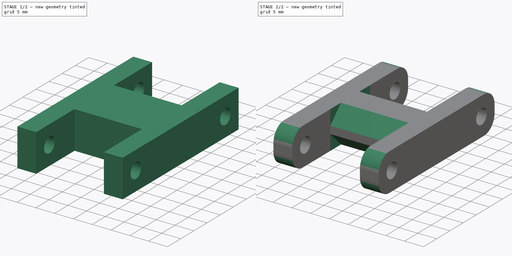
[diagram: build sequence overview — one tinted view per stage of 2, left to right]
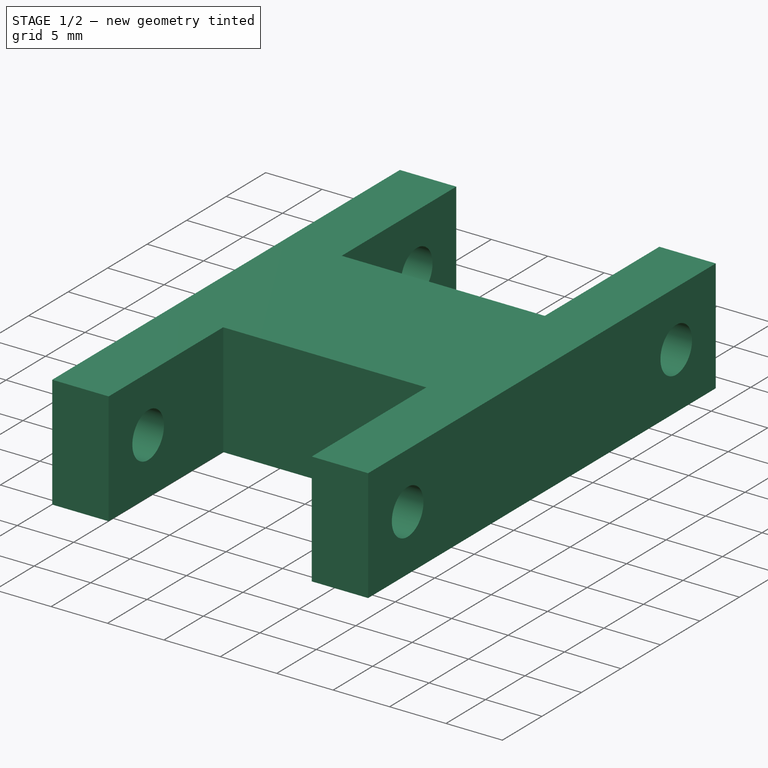
[diagram: stage 1 of 2 — iso view after this stage's code; geometry added in this stage tinted green]
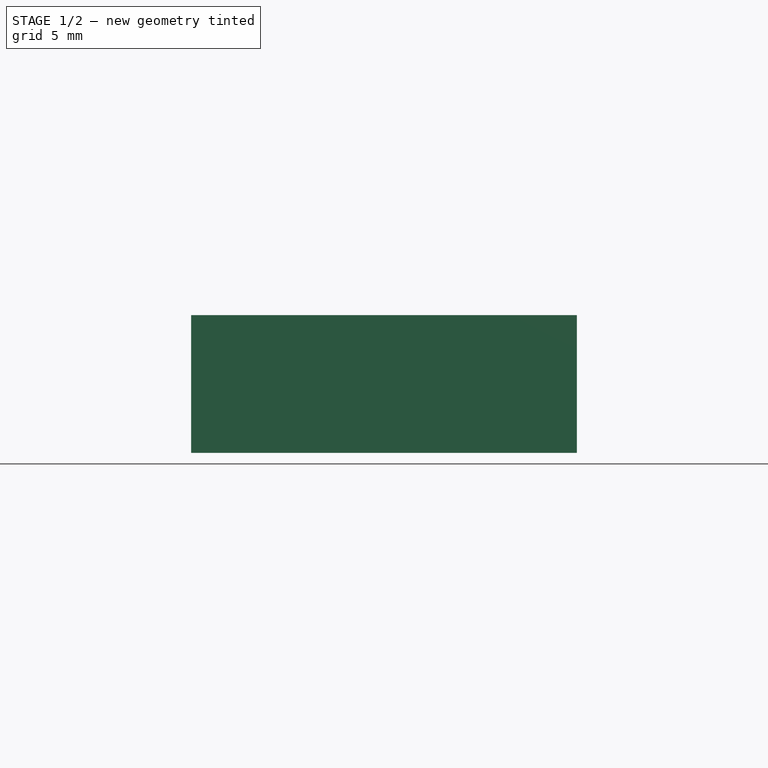
[diagram: stage 1 of 2 — front view after this stage's code; geometry added in this stage tinted green]
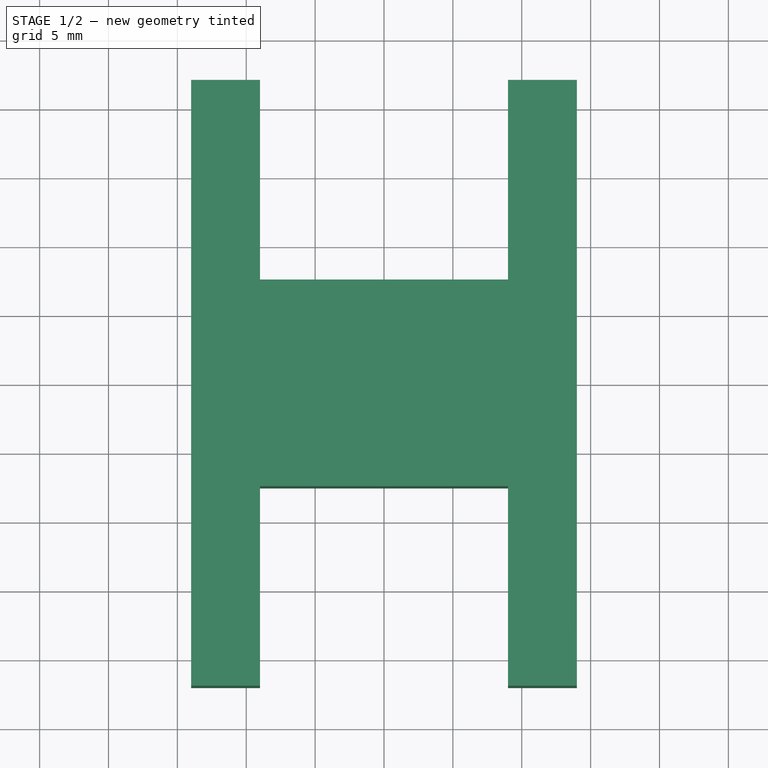
[diagram: stage 1 of 2 — top view after this stage's code; geometry added in this stage tinted green]
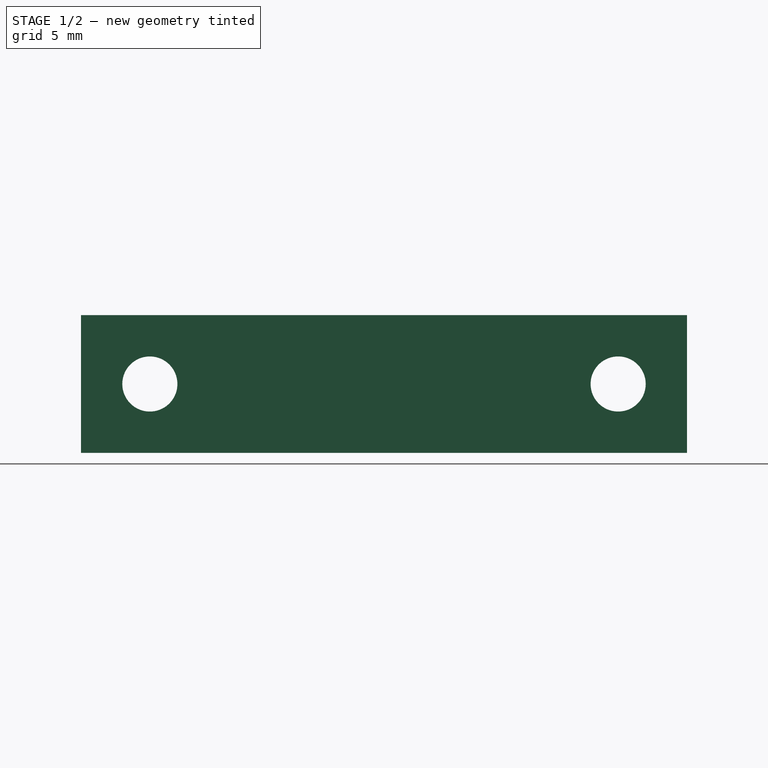
[diagram: stage 1 of 2 — right view after this stage's code; geometry added in this stage tinted green]
FCSTD DOCUMENT  (FreeCAD 0.18.3R)
Label: hinge
License: All rights reserved
LicenseURL: http://en.wikipedia.org/wiki/All_rights_reserved
objects: Sketcher::SketchObject×2, PartDesign::Pad×1, PartDesign::Pocket×1, PartDesign::Chamfer×1, PartDesign::Fillet×1, PartDesign::Body×1
note: 9 computed .brp shape members not serialized (recipe doc carries the construction recipe); baked Part::Feature solids carry a one-line shape summary decoded from their .brp

FEATURE [Sketcher::SketchObject] Sketch
  MapMode = 5
  Support = -> [XY_Plane]
  sketch-geometry (12):
    g0: LineSegment StartX=-9 StartY=7.5 StartZ=0 EndX=9 EndY=7.5 EndZ=0
    g1: LineSegment StartX=9 StartY=7.5 StartZ=0 EndX=9 EndY=22 EndZ=0
    g2: LineSegment StartX=9 StartY=22 StartZ=0 EndX=14 EndY=22 EndZ=0
    g3: LineSegment StartX=14 StartY=22 StartZ=0 EndX=14 EndY=-22 EndZ=0
    g4: LineSegment StartX=14 StartY=-22 StartZ=0 EndX=9 EndY=-22 EndZ=0
    g5: LineSegment StartX=9 StartY=-22 StartZ=0 EndX=9 EndY=-7.5 EndZ=0
    g6: LineSegment StartX=9 StartY=-7.5 StartZ=0 EndX=-9 EndY=-7.5 EndZ=0
    g7: LineSegment StartX=-9 StartY=-7.5 StartZ=0 EndX=-9 EndY=-22 EndZ=0
    g8: LineSegment StartX=-9 StartY=-22 StartZ=0 EndX=-14 EndY=-22 EndZ=0
    g9: LineSegment StartX=-14 StartY=-22 StartZ=0 EndX=-14 EndY=22 EndZ=0
    g10: LineSegment StartX=-14 StartY=22 StartZ=0 EndX=-9 EndY=22 EndZ=0
    g11: LineSegment StartX=-9 StartY=22 StartZ=0 EndX=-9 EndY=7.5 EndZ=0
  constraints (37):
    c: Coincident(g0,g1)
    c: Coincident(g1,g2)
    c: Coincident(g2,g3)
    c: Coincident(g3,g4)
    c: Coincident(g4,g5)
    c: Coincident(g5,g6)
    c: Coincident(g6,g7)
    c: Coincident(g7,g8)
    c: Coincident(g8,g9)
    c: Coincident(g9,g10)
    c: Coincident(g10,g11)
    c: Coincident(g11,g0)
    c: Vertical(g9)
    c: Vertical(g11)
    c: Vertical(g1)
    c: Vertical(g3)
    c: Vertical(g5)
    c: Horizontal(g0)
    c: Horizontal(g10)
    c: Horizontal(g2)
    c: Horizontal(g4)
    c: Horizontal(g6)
    c: Distance(g0) = 18
    c: Equal(g6,g0)
    c: Distance(g10) = 5
    c: Equal(g10,g2)
    c: Equal(g4,g2)
    c: Equal(g8,g10)
    c: Equal(g1,g11)
    c: Equal(g5,g7)
    c: Equal(g6,g0)
    c: Distance(g3) = 44
    c: Equal(g3,g9)
    c: DistanceY(g5,g0) = 15
    c: Equal(g1,g5)
    c: DistanceX(g-1,g0) = 9
    c: DistanceY(g-1,g0) = 7.5
FEATURE [PartDesign::Pad] Pad
  Length = 10
  Length2 = 100
  Profile = -> Sketch
  Type = 0
FEATURE [Sketcher::SketchObject] Sketch001
  MapMode = 5
  Placement = pos=(14,0,0) rot=(0.57735,0.57735,0.57735;2.0944rad)
  Support = -> [Pad]
  sketch-geometry (2):
    g0: Circle CenterX=-17 CenterY=5 CenterZ=0 NormalX=0 NormalY=0 NormalZ=1 AngleXU=0 Radius=2
    g1: Circle CenterX=17 CenterY=5 CenterZ=0 NormalX=0 NormalY=0 NormalZ=1 AngleXU=0 Radius=2
  constraints (6):
    c: Radius(g0) = 2
    c: Radius(g1) = 2
    c: DistanceX(g0,g-1) = 17
    c: DistanceX(g-1,g1) = 17
    c: DistanceY(g-1,g1) = 5
    c: DistanceY(g-1,g0) = 5
FEATURE [PartDesign::Pocket] Pocket
  BaseFeature = -> Pad
  Length = 31
  Length2 = 100
  Profile = -> Sketch001
  Type = 0
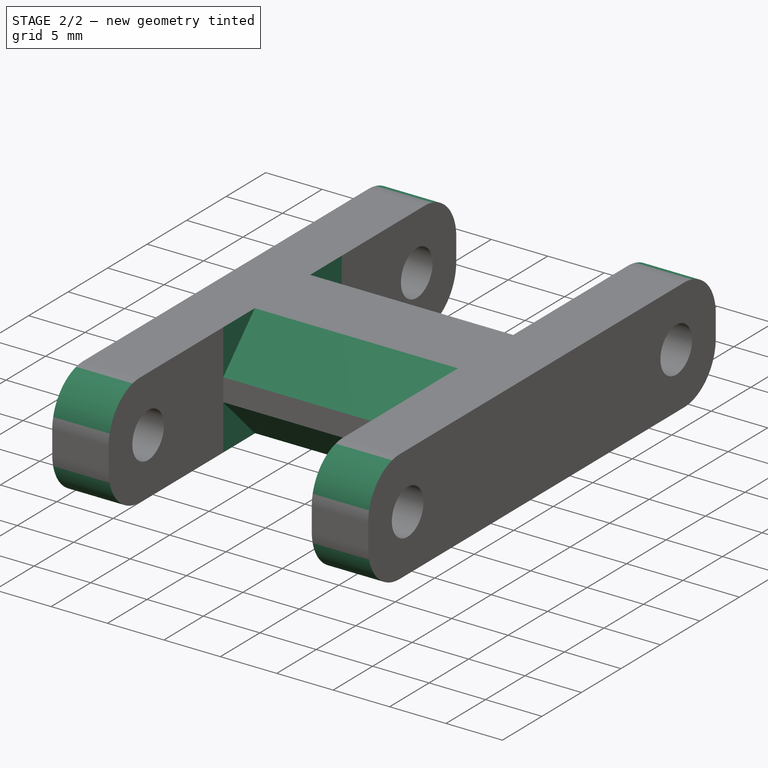
[diagram: stage 2 of 2 — iso view after this stage's code; geometry added in this stage tinted green]
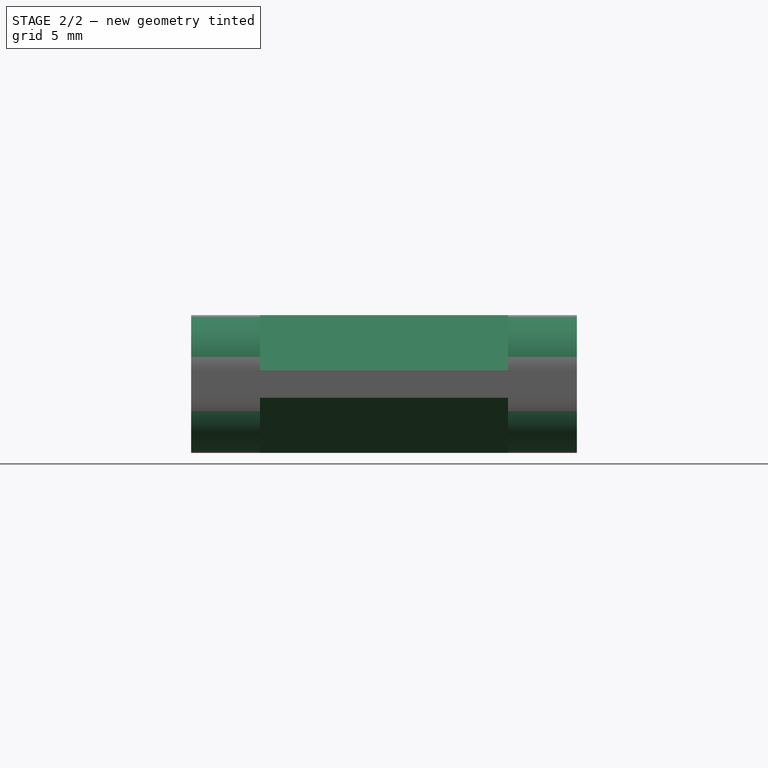
[diagram: stage 2 of 2 — front view after this stage's code; geometry added in this stage tinted green]
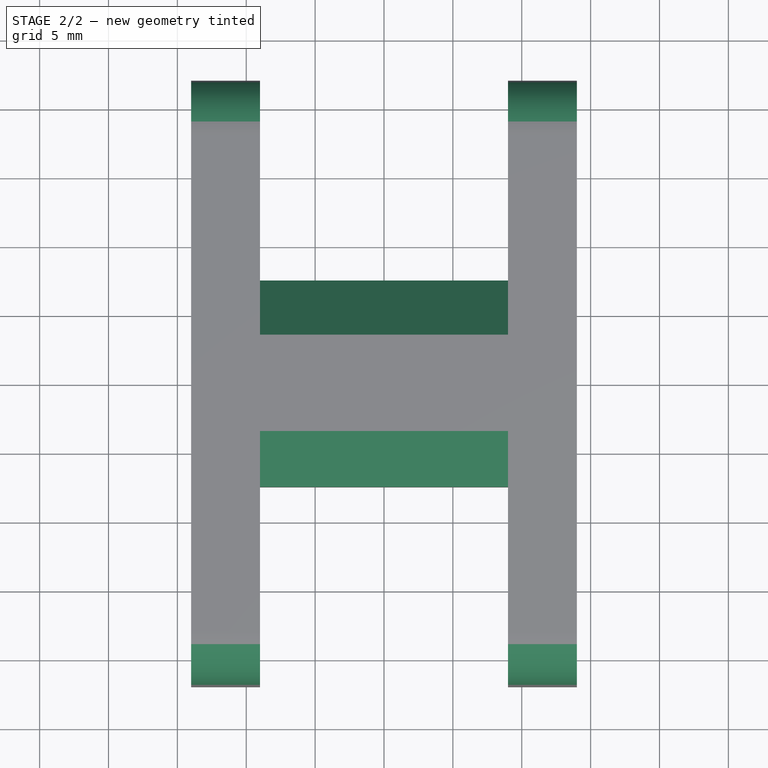
[diagram: stage 2 of 2 — top view after this stage's code; geometry added in this stage tinted green]
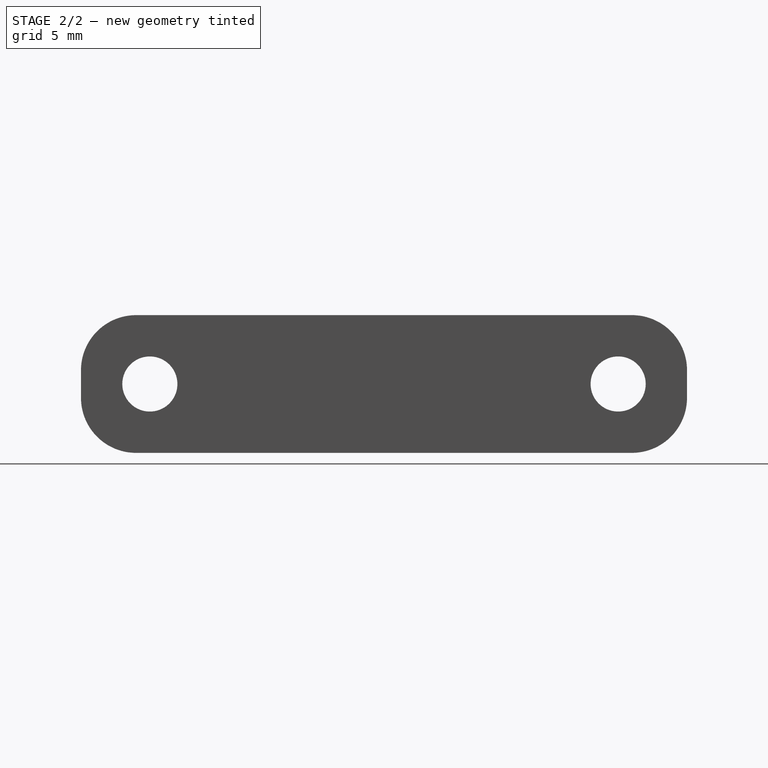
[diagram: stage 2 of 2 — right view after this stage's code; geometry added in this stage tinted green]
FEATURE [PartDesign::Chamfer] Chamfer
  Base = -> Pocket [Edge4,Edge26,Edge3,Edge17]
  BaseFeature = -> Pocket
  Size = 4
FEATURE [PartDesign::Fillet] Fillet
  Base = -> Chamfer [Edge26,Edge23,Edge37,Edge34,Edge41,Edge36,Edge25,Edge30]
  BaseFeature = -> Chamfer
  Radius = 4
FEATURE [PartDesign::Body] Body
  Group = -> [Sketch,Pad,Sketch001,Pocket,Chamfer,Fillet]
  Origin = -> Origin
  Tip = -> Fillet
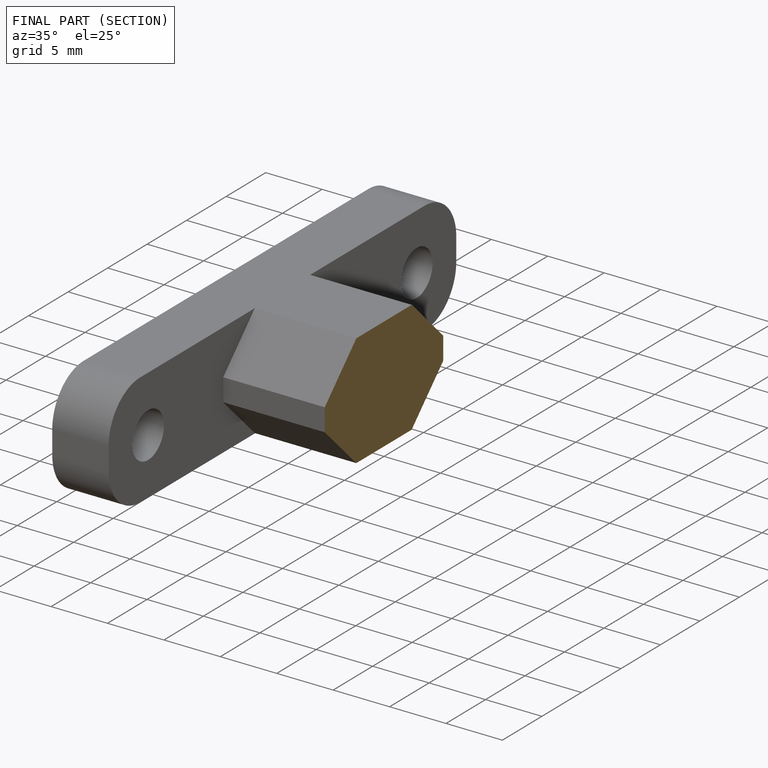
[diagram: finished part — half-section view (interior)]
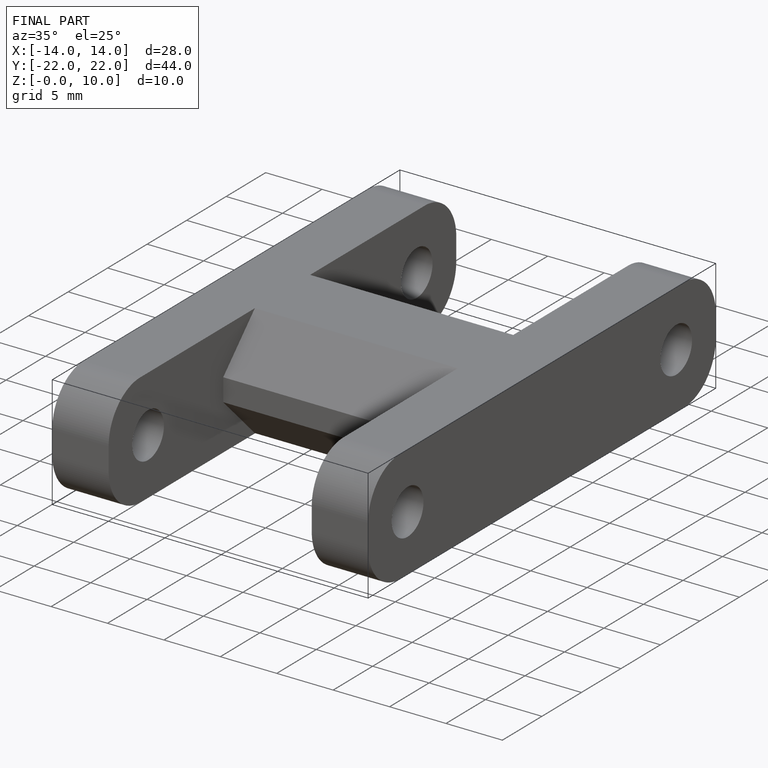
[diagram: finished part — iso view with bounding-box wireframe]
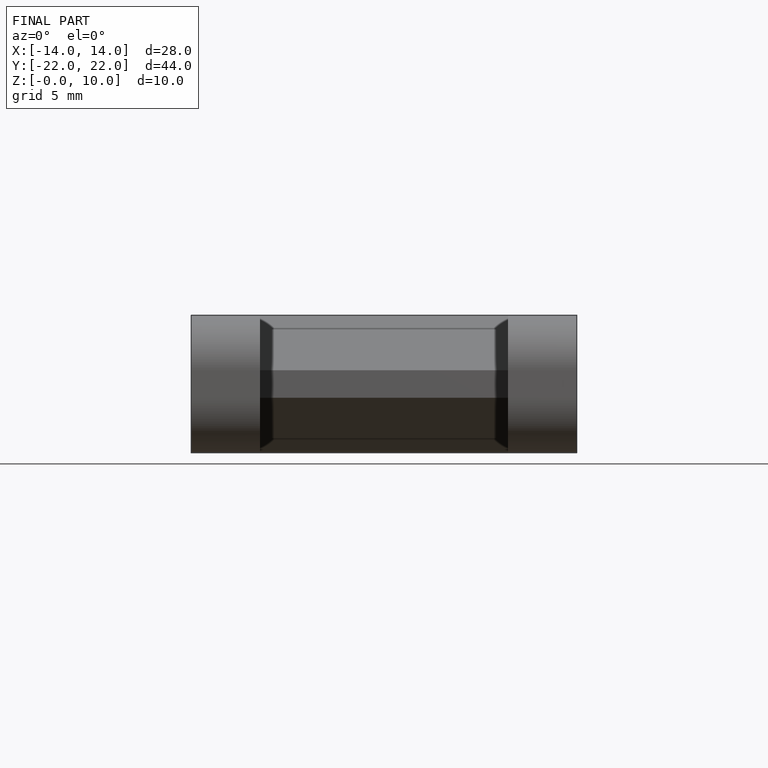
[diagram: finished part — front view with bounding-box wireframe]
